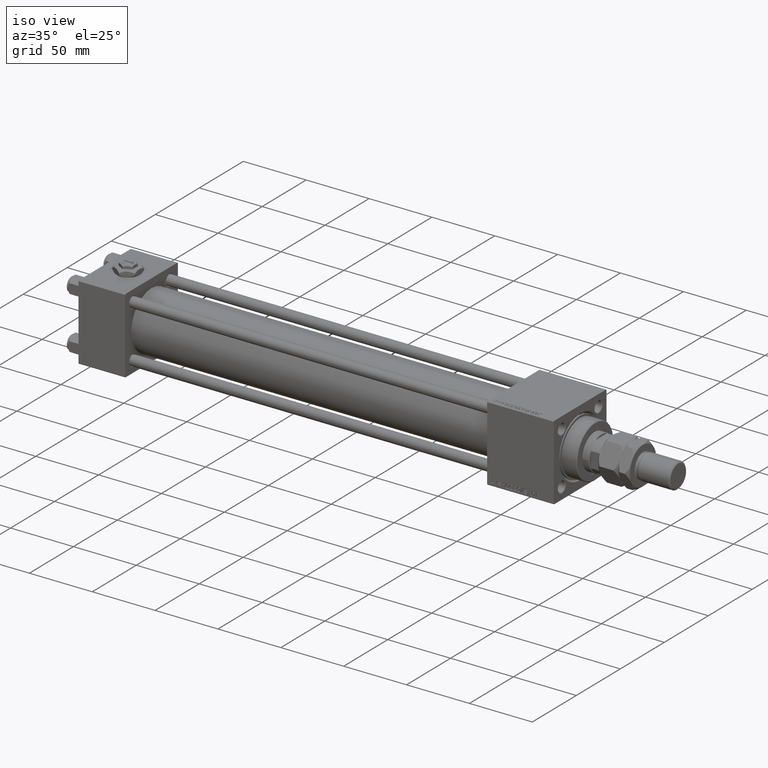
[diagram: clean part render]
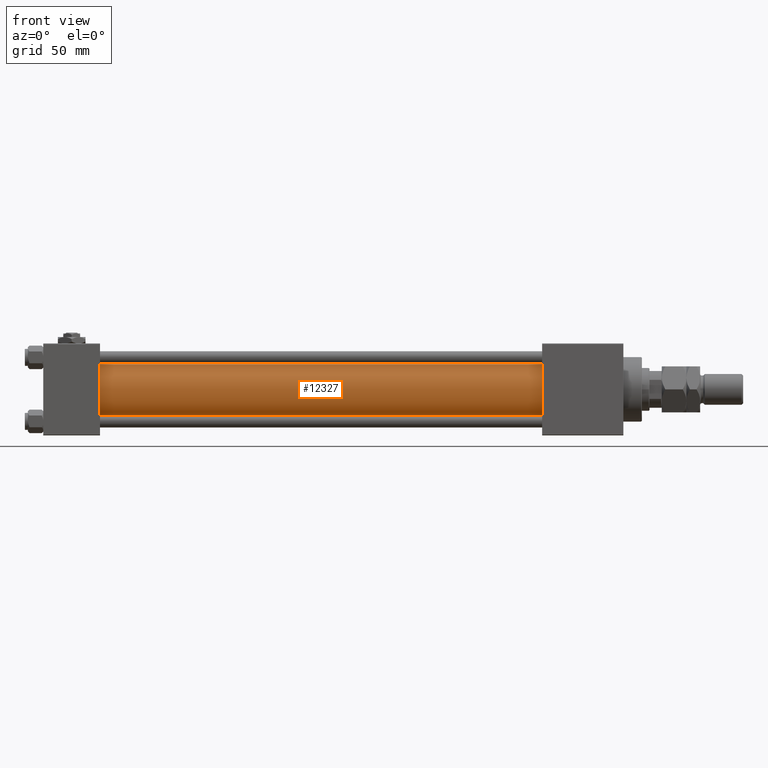
[diagram: tour spotlight — one face highlighted and labeled with its STEP entity id]
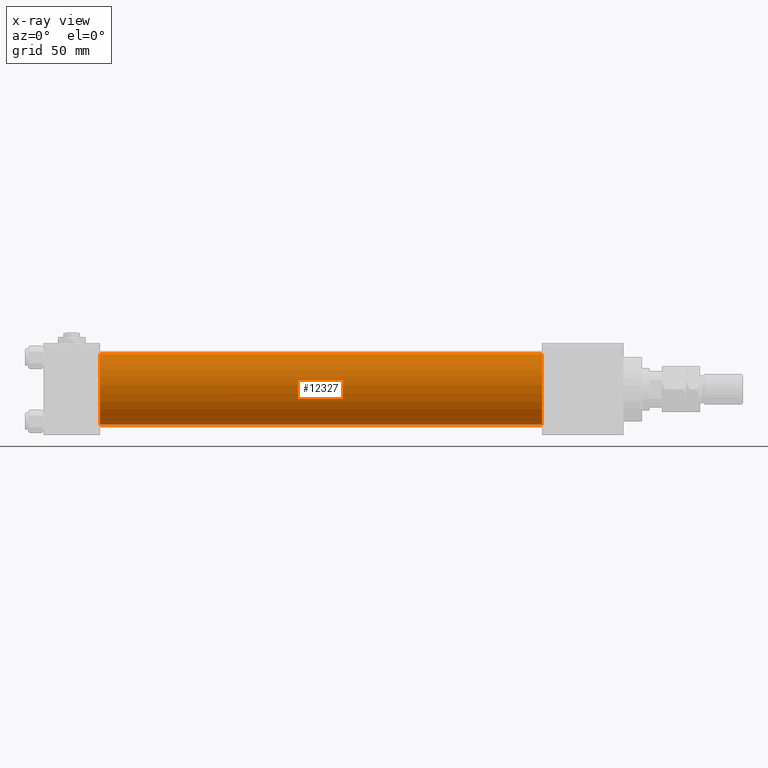
[diagram: x-ray of the same camera — body ghosted, this tour face saturated]
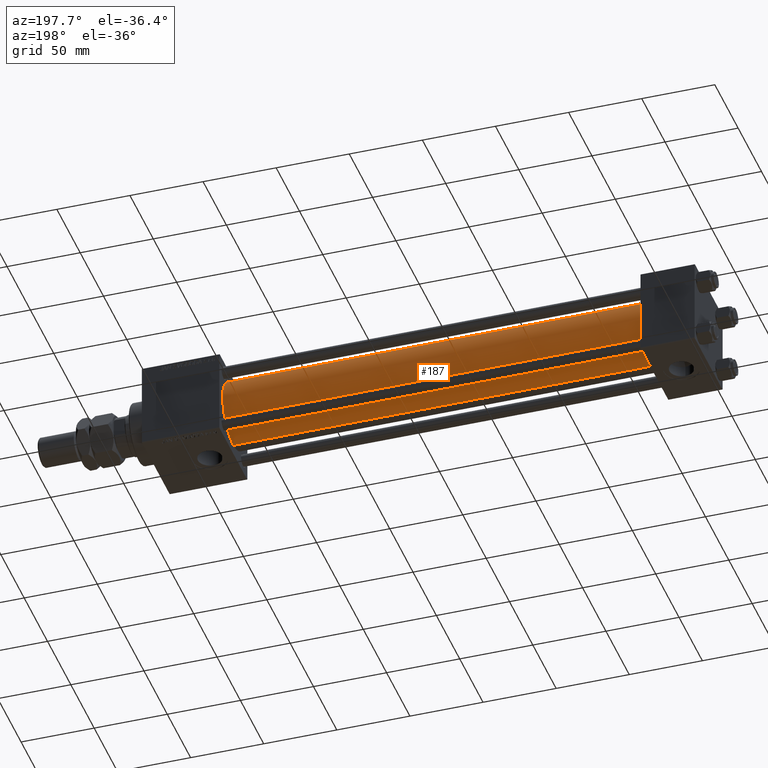
[diagram: tour spotlight — one face highlighted and labeled with its STEP entity id]
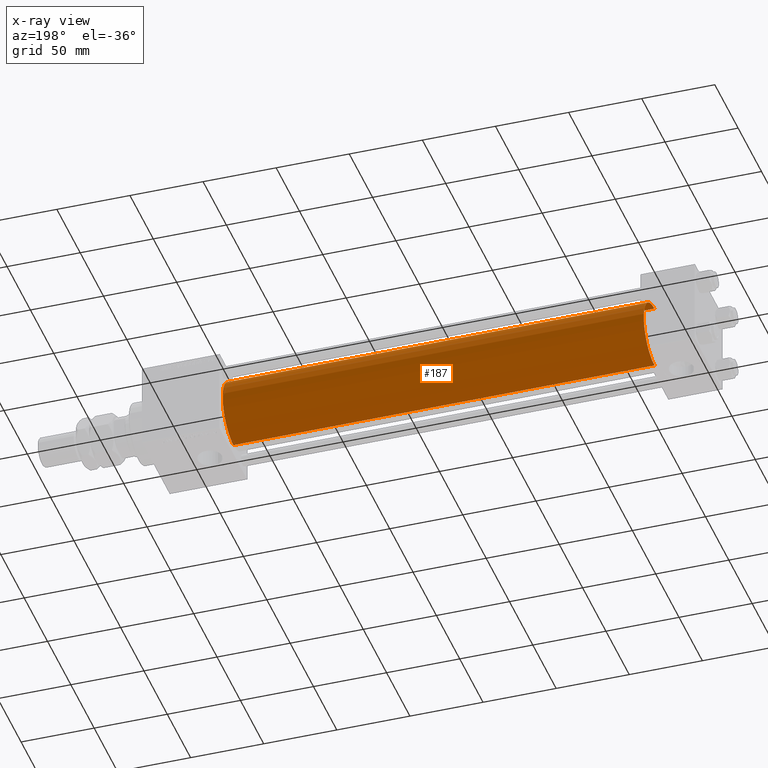
[diagram: x-ray of the same camera — body ghosted, this tour face saturated]
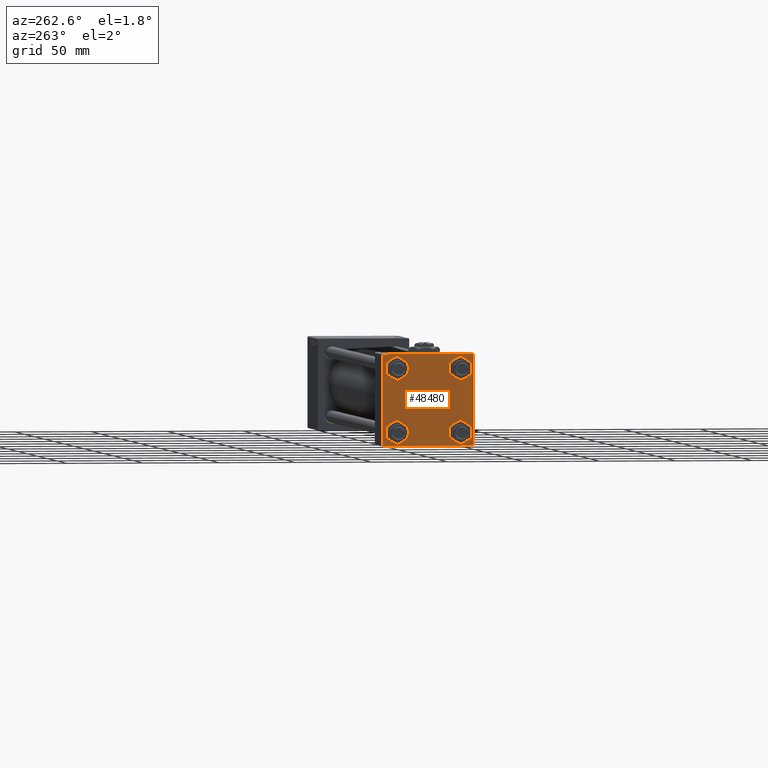
[diagram: tour spotlight — one face highlighted and labeled with its STEP entity id]
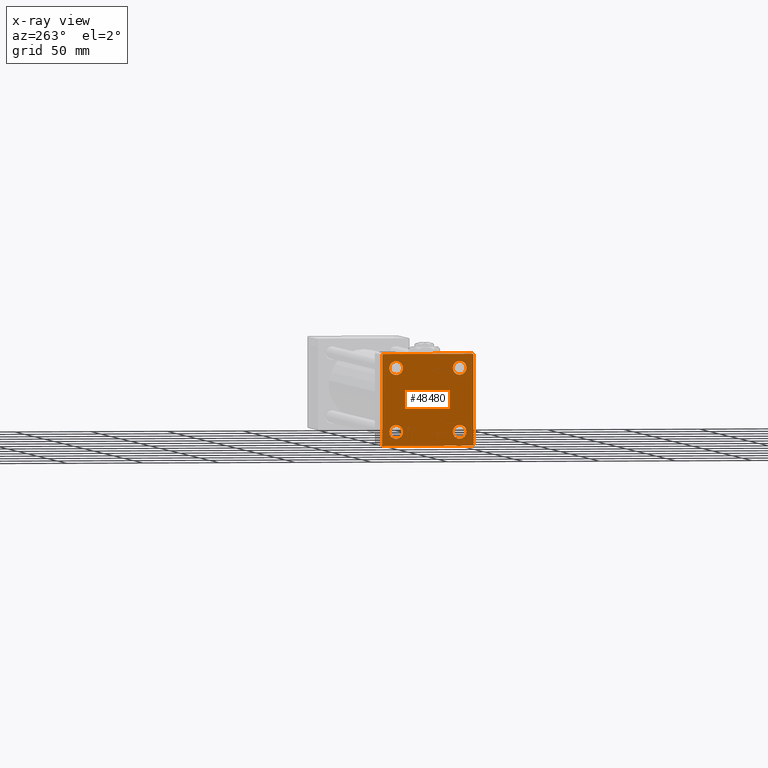
[diagram: x-ray of the same camera — body ghosted, this tour face saturated]
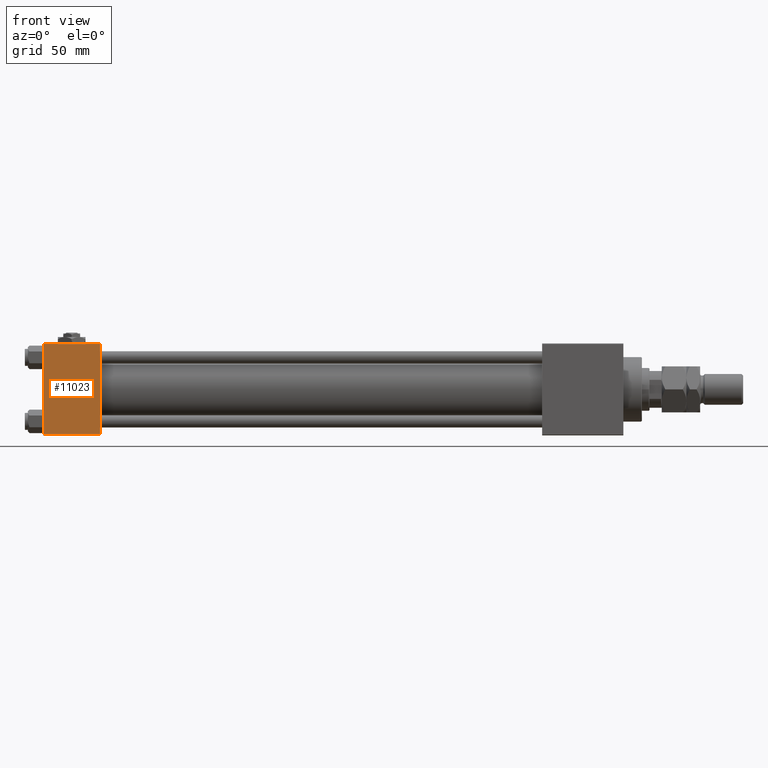
[diagram: tour spotlight — one face highlighted and labeled with its STEP entity id]
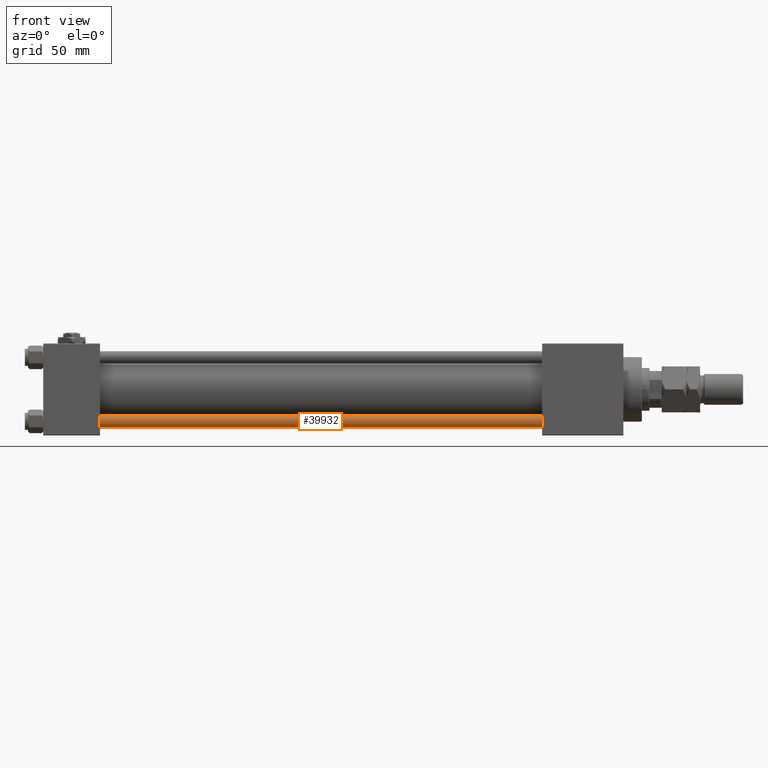
[diagram: tour spotlight — one face highlighted and labeled with its STEP entity id]
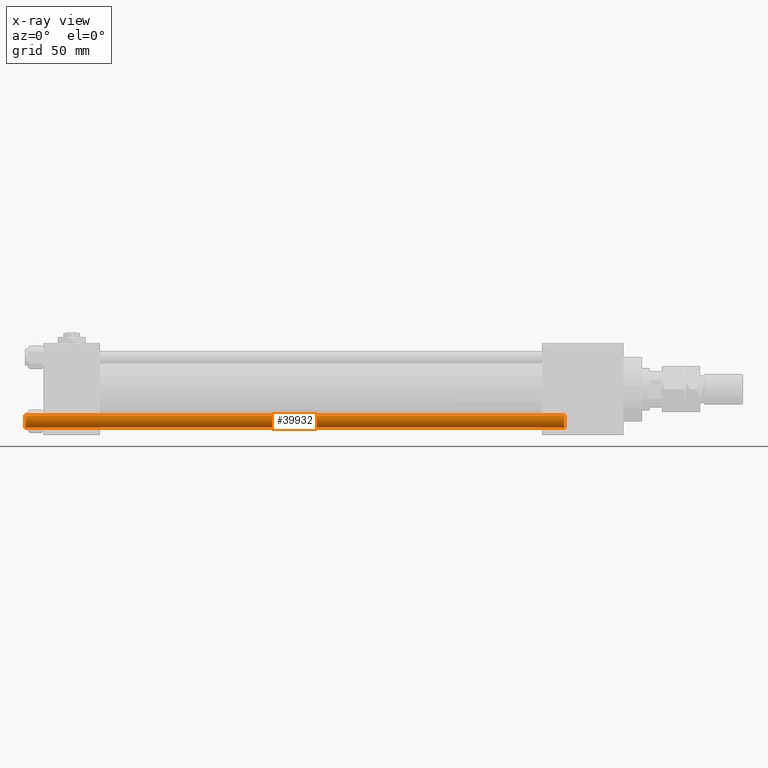
[diagram: x-ray of the same camera — body ghosted, this tour face saturated]
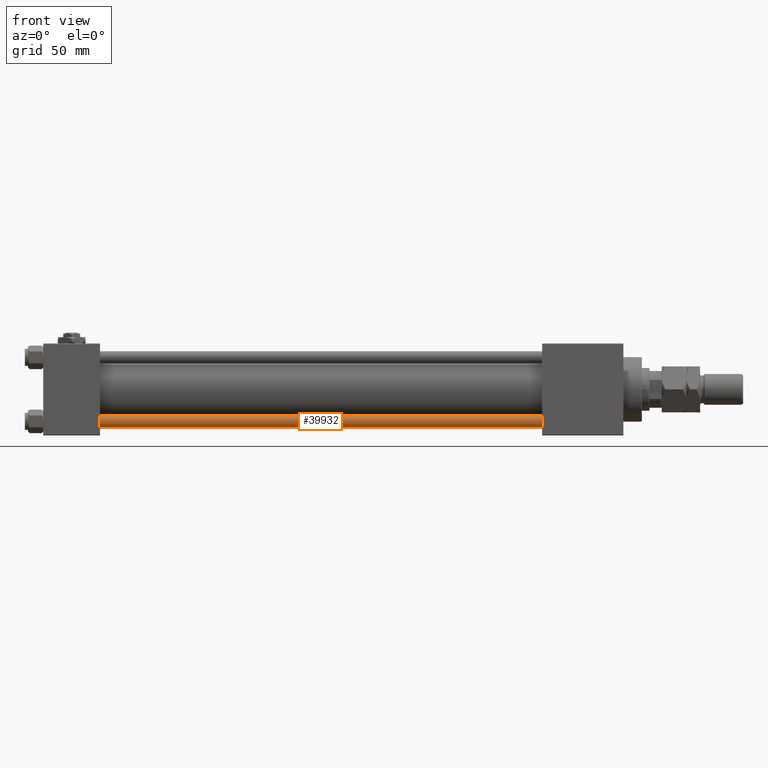
[diagram: tour spotlight — one face highlighted and labeled with its STEP entity id]
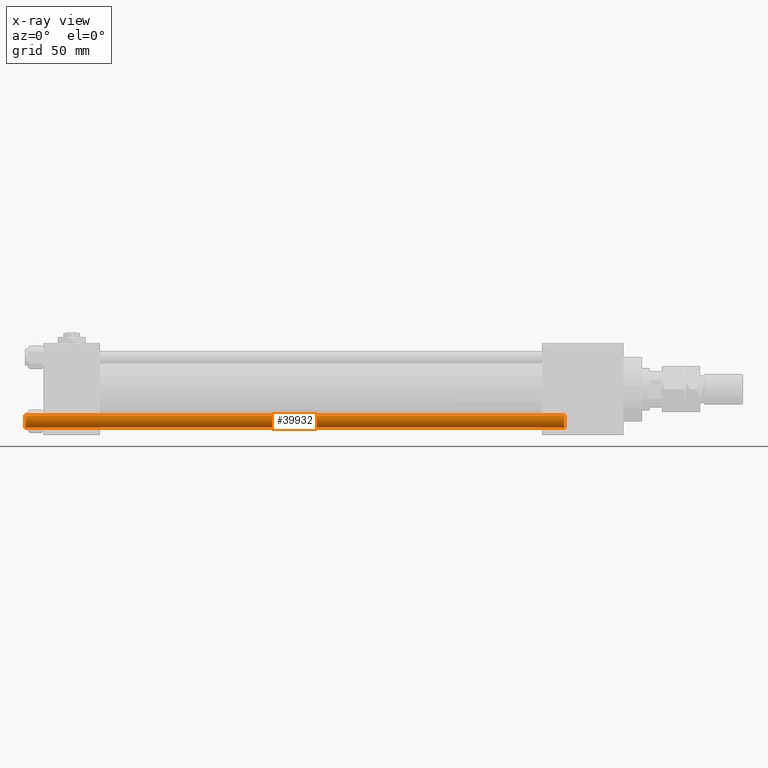
[diagram: x-ray of the same camera — body ghosted, this tour face saturated]
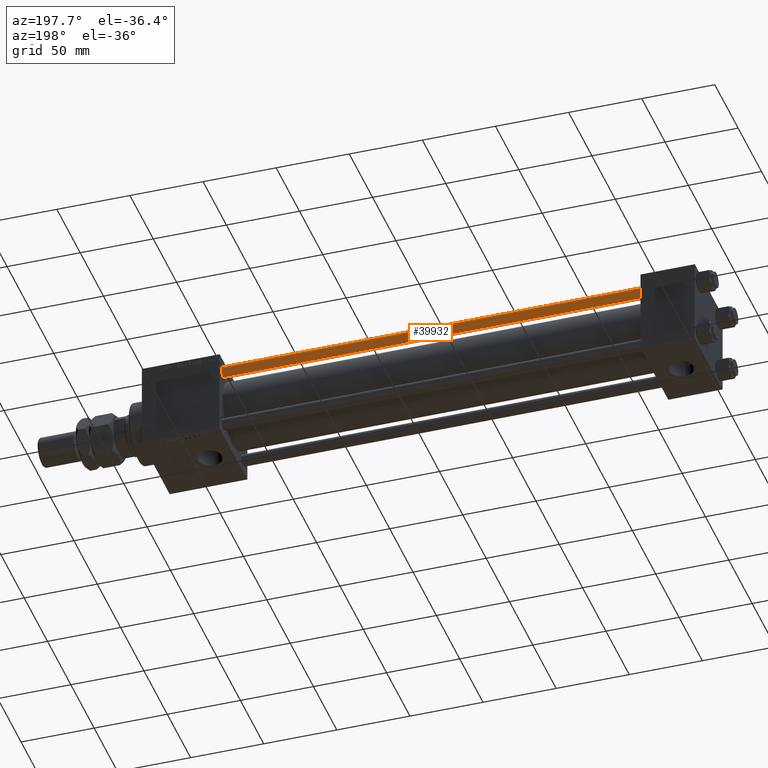
[diagram: tour spotlight — one face highlighted and labeled with its STEP entity id]
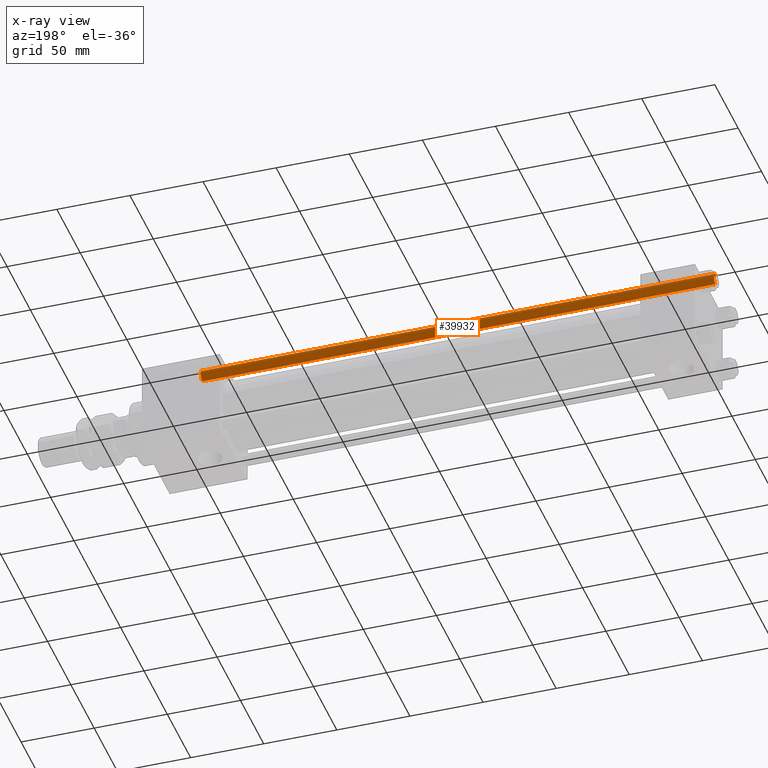
[diagram: x-ray of the same camera — body ghosted, this tour face saturated]
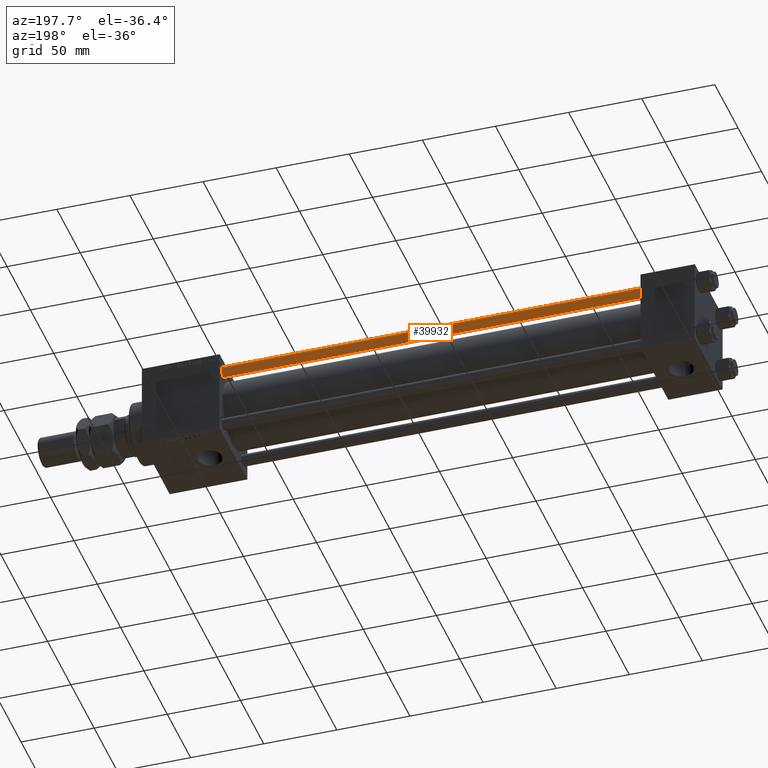
[diagram: tour spotlight — one face highlighted and labeled with its STEP entity id]
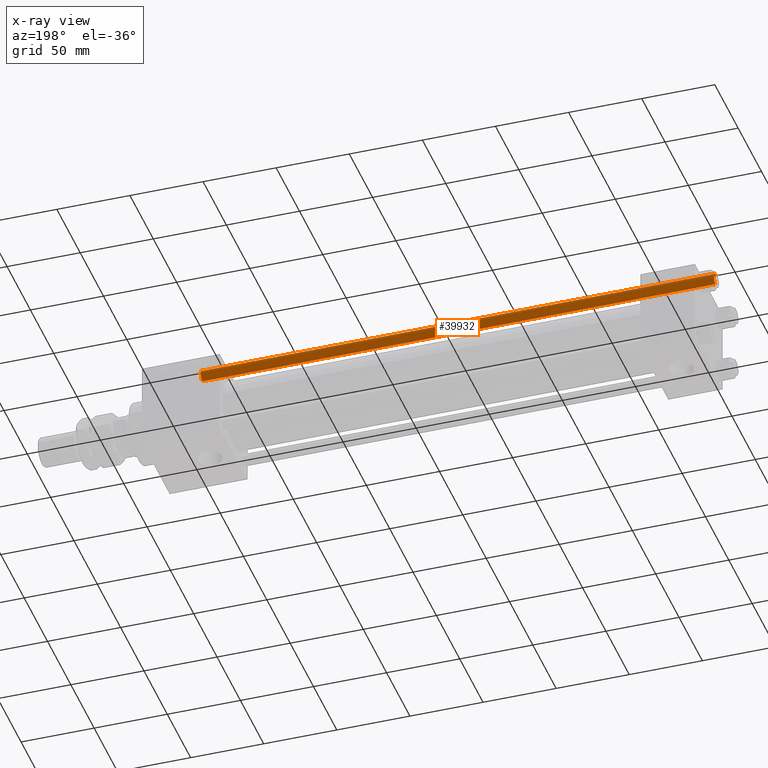
[diagram: x-ray of the same camera — body ghosted, this tour face saturated]
A machine part: a face-by-face anatomy tour. The part has 1251 B-rep faces; the first image is the clean iso view, then the 8 largest visible faces are spotlighted one at a time (largest first), each with its STEP entity span.

Face 1 — front view, entity #12327. An x-ray twin of the same camera follows (body ghosted, this face saturated) — the face is partly hidden behind the body. In plain terms, the highlighted cylindrical surface (edge-blend (fillet) strip) has radius 23 mm, axis along (-1, -0, -0).
Definition (entity closure, byte-faithful):
#2761 = CYLINDRICAL_SURFACE ( 'NONE', #42569, 23.00000000000000000 ) ;
#7839 = CARTESIAN_POINT ( 'NONE',  ( 324.9999999999999432, -2.602085213965210642E-15, 23.00000000000000000 ) ) ;
#7907 = ORIENTED_EDGE ( 'NONE', *, *, #30806, .F. ) ;
#8933 = EDGE_CURVE ( 'NONE', #37255, #41369, #32789, .T. ) ;
#9469 = AXIS2_PLACEMENT_3D ( 'NONE', #46991, #38850, #31000 ) ;
#10084 = ORIENTED_EDGE ( 'NONE', *, *, #19913, .T. ) ;
#11193 = DIRECTION ( 'NONE',  ( 1.000000000000000000, 0.000000000000000000, 0.000000000000000000 ) ) ;
#12068 = DIRECTION ( 'NONE',  ( -1.000000000000000000, -0.000000000000000000, -0.000000000000000000 ) ) ;
#12327 = ADVANCED_FACE ( 'NONE', ( #31465 ), #2761, .T. ) ;
#13672 = CIRCLE ( 'NONE', #24070, 23.00000000000000000 ) ;
#14041 = CARTESIAN_POINT ( 'NONE',  ( 324.9999999999999432, 2.146024240737016609E-16, -23.00000000000000000 ) ) ;
#14940 = DIRECTION ( 'NONE',  ( 0.000000000000000000, 0.000000000000000000, 1.000000000000000000 ) ) ;
#16342 = ORIENTED_EDGE ( 'NONE', *, *, #39855, .F. ) ;
#16907 = CARTESIAN_POINT ( 'NONE',  ( 324.9999999999999432, -2.602085213965210642E-15, 0.000000000000000000 ) ) ;
#19009 = DIRECTION ( 'NONE',  ( -1.000000000000000000, -0.000000000000000000, -0.000000000000000000 ) ) ;
#19913 = EDGE_CURVE ( 'NONE', #29103, #37255, #34590, .T. ) ;
#20766 = ORIENTED_EDGE ( 'NONE', *, *, #8933, .T. ) ;
#20984 = CARTESIAN_POINT ( 'NONE',  ( 324.9999999999999432, 2.146024240737016609E-16, -23.00000000000000000 ) ) ;
#24070 = AXIS2_PLACEMENT_3D ( 'NONE', #16907, #11193, #27451 ) ;
#27451 = DIRECTION ( 'NONE',  ( 0.000000000000000000, 0.000000000000000000, -1.000000000000000000 ) ) ;
#29103 = VERTEX_POINT ( 'NONE', #7839 ) ;
#30806 = EDGE_CURVE ( 'NONE', #29103, #35135, #13672, .T. ) ;
#31000 = DIRECTION ( 'NONE',  ( 0.000000000000000000, 0.000000000000000000, 1.000000000000000000 ) ) ;
#31465 = FACE_OUTER_BOUND ( 'NONE', #50797, .T. ) ;
#32252 = VECTOR ( 'NONE', #12068, 1000.000000000000000 ) ;
#32789 = CIRCLE ( 'NONE', #9469, 23.00000000000000000 ) ;
#34329 = CARTESIAN_POINT ( 'NONE',  ( 324.9999999999999432, -2.602085213965210642E-15, 23.00000000000000000 ) ) ;
#34590 = LINE ( 'NONE', #34329, #39392 ) ;
#35135 = VERTEX_POINT ( 'NONE', #14041 ) ;
#37255 = VERTEX_POINT ( 'NONE', #48968 ) ;
#38377 = DIRECTION ( 'NONE',  ( -1.000000000000000000, -0.000000000000000000, -0.000000000000000000 ) ) ;
#38850 = DIRECTION ( 'NONE',  ( 1.000000000000000000, -0.000000000000000000, 0.000000000000000000 ) ) ;
#39056 = CARTESIAN_POINT ( 'NONE',  ( 324.9999999999999432, -2.602085213965210642E-15, 0.000000000000000000 ) ) ;
#39392 = VECTOR ( 'NONE', #38377, 1000.000000000000000 ) ;
#39855 = EDGE_CURVE ( 'NONE', #35135, #41369, #53506, .T. ) ;
#41369 = VERTEX_POINT ( 'NONE', #44654 ) ;
#42569 = AXIS2_PLACEMENT_3D ( 'NONE', #39056, #19009, #14940 ) ;
#44654 = CARTESIAN_POINT ( 'NONE',  ( 36.99999999999997868, 2.146024240737016609E-16, -23.00000000000000000 ) ) ;
#46991 = CARTESIAN_POINT ( 'NONE',  ( 36.99999999999997868, -2.602085213965210642E-15, 0.000000000000000000 ) ) ;
#48968 = CARTESIAN_POINT ( 'NONE',  ( 36.99999999999997868, -2.602085213965210642E-15, 23.00000000000000000 ) ) ;
#50797 = EDGE_LOOP ( 'NONE', ( #16342, #7907, #10084, #20766 ) ) ;
#53506 = LINE ( 'NONE', #20984, #32252 ) ;

Face 2 — auxiliary view, entity #187. An x-ray twin of the same camera follows (body ghosted, this face saturated) — the face is partly hidden behind the body. In plain terms, the highlighted cylindrical surface (edge-blend (fillet) strip) has radius 23 mm, axis along (-1, -0, -0).
Definition (entity closure, byte-faithful):
#187 = ADVANCED_FACE ( 'NONE', ( #19059 ), #43716, .T. ) ;
#2371 = DIRECTION ( 'NONE',  ( 0.000000000000000000, 0.000000000000000000, -1.000000000000000000 ) ) ;
#3791 = DIRECTION ( 'NONE',  ( 0.000000000000000000, 0.000000000000000000, 1.000000000000000000 ) ) ;
#6091 = EDGE_LOOP ( 'NONE', ( #43416, #14956, #22613, #22994 ) ) ;
#6350 = CARTESIAN_POINT ( 'NONE',  ( 324.9999999999999432, -2.602085213965210642E-15, 0.000000000000000000 ) ) ;
#7839 = CARTESIAN_POINT ( 'NONE',  ( 324.9999999999999432, -2.602085213965210642E-15, 23.00000000000000000 ) ) ;
#12068 = DIRECTION ( 'NONE',  ( -1.000000000000000000, -0.000000000000000000, -0.000000000000000000 ) ) ;
#12181 = DIRECTION ( 'NONE',  ( 1.000000000000000000, -0.000000000000000000, 0.000000000000000000 ) ) ;
#14041 = CARTESIAN_POINT ( 'NONE',  ( 324.9999999999999432, 2.146024240737016609E-16, -23.00000000000000000 ) ) ;
#14956 = ORIENTED_EDGE ( 'NONE', *, *, #39855, .T. ) ;
#18590 = EDGE_CURVE ( 'NONE', #41369, #37255, #49687, .T. ) ;
#19059 = FACE_OUTER_BOUND ( 'NONE', #6091, .T. ) ;
#19913 = EDGE_CURVE ( 'NONE', #29103, #37255, #34590, .T. ) ;
#20984 = CARTESIAN_POINT ( 'NONE',  ( 324.9999999999999432, 2.146024240737016609E-16, -23.00000000000000000 ) ) ;
#21524 = AXIS2_PLACEMENT_3D ( 'NONE', #52209, #22412, #2371 ) ;
#22314 = DIRECTION ( 'NONE',  ( -1.000000000000000000, -0.000000000000000000, -0.000000000000000000 ) ) ;
#22412 = DIRECTION ( 'NONE',  ( 1.000000000000000000, 0.000000000000000000, 0.000000000000000000 ) ) ;
#22613 = ORIENTED_EDGE ( 'NONE', *, *, #18590, .T. ) ;
#22994 = ORIENTED_EDGE ( 'NONE', *, *, #19913, .F. ) ;
#26331 = AXIS2_PLACEMENT_3D ( 'NONE', #28958, #12181, #3791 ) ;
#28958 = CARTESIAN_POINT ( 'NONE',  ( 36.99999999999997868, -2.602085213965210642E-15, 0.000000000000000000 ) ) ;
#29103 = VERTEX_POINT ( 'NONE', #7839 ) ;
#31635 = EDGE_CURVE ( 'NONE', #35135, #29103, #37058, .T. ) ;
#32252 = VECTOR ( 'NONE', #12068, 1000.000000000000000 ) ;
#34329 = CARTESIAN_POINT ( 'NONE',  ( 324.9999999999999432, -2.602085213965210642E-15, 23.00000000000000000 ) ) ;
#34590 = LINE ( 'NONE', #34329, #39392 ) ;
#35135 = VERTEX_POINT ( 'NONE', #14041 ) ;
#35843 = DIRECTION ( 'NONE',  ( 0.000000000000000000, 0.000000000000000000, 1.000000000000000000 ) ) ;
#37058 = CIRCLE ( 'NONE', #21524, 23.00000000000000000 ) ;
#37255 = VERTEX_POINT ( 'NONE', #48968 ) ;
#38377 = DIRECTION ( 'NONE',  ( -1.000000000000000000, -0.000000000000000000, -0.000000000000000000 ) ) ;
#39392 = VECTOR ( 'NONE', #38377, 1000.000000000000000 ) ;
#39855 = EDGE_CURVE ( 'NONE', #35135, #41369, #53506, .T. ) ;
#40491 = AXIS2_PLACEMENT_3D ( 'NONE', #6350, #22314, #35843 ) ;
#41369 = VERTEX_POINT ( 'NONE', #44654 ) ;
#43416 = ORIENTED_EDGE ( 'NONE', *, *, #31635, .F. ) ;
#43716 = CYLINDRICAL_SURFACE ( 'NONE', #40491, 23.00000000000000000 ) ;
#44654 = CARTESIAN_POINT ( 'NONE',  ( 36.99999999999997868, 2.146024240737016609E-16, -23.00000000000000000 ) ) ;
#48968 = CARTESIAN_POINT ( 'NONE',  ( 36.99999999999997868, -2.602085213965210642E-15, 23.00000000000000000 ) ) ;
#49687 = CIRCLE ( 'NONE', #26331, 23.00000000000000000 ) ;
#52209 = CARTESIAN_POINT ( 'NONE',  ( 324.9999999999999432, -2.602085213965210642E-15, 0.000000000000000000 ) ) ;
#53506 = LINE ( 'NONE', #20984, #32252 ) ;

Face 3 — auxiliary view, entity #48480. An x-ray twin of the same camera follows (body ghosted, this face saturated) — the face is partly hidden behind the body. In plain terms, the highlighted planar face has unit normal (-1, 0, 0).
Definition (entity closure, byte-faithful):
#182 = CARTESIAN_POINT ( 'NONE',  ( 0.000000000000000000, 20.84999999999999787, 20.85000000000000142 ) ) ;
#559 = EDGE_CURVE ( 'NONE', #8700, #3542, #6761, .T. ) ;
#989 = CIRCLE ( 'NONE', #29497, 4.500000000000017764 ) ;
#992 = DIRECTION ( 'NONE',  ( 1.000000000000000000, -0.000000000000000000, 0.000000000000000000 ) ) ;
#1590 = ORIENTED_EDGE ( 'NONE', *, *, #18714, .T. ) ;
#2048 = CARTESIAN_POINT ( 'NONE',  ( 0.000000000000000000, 20.84999999999999787, 16.34999999999998366 ) ) ;
#2422 = DIRECTION ( 'NONE',  ( -0.000000000000000000, 0.000000000000000000, 1.000000000000000000 ) ) ;
#2728 = CARTESIAN_POINT ( 'NONE',  ( 0.000000000000000000, 20.84999999999999787, -16.34999999999998366 ) ) ;
#3257 = DIRECTION ( 'NONE',  ( 1.000000000000000000, -0.000000000000000000, 0.000000000000000000 ) ) ;
#3311 = DIRECTION ( 'NONE',  ( 0.000000000000000000, 0.000000000000000000, -1.000000000000000000 ) ) ;
#3400 = VECTOR ( 'NONE', #23100, 1000.000000000000000 ) ;
#3542 = VERTEX_POINT ( 'NONE', #47153 ) ;
#3694 = ORIENTED_EDGE ( 'NONE', *, *, #42987, .T. ) ;
#4223 = ORIENTED_EDGE ( 'NONE', *, *, #33313, .F. ) ;
#4341 = VECTOR ( 'NONE', #19102, 1000.000000000000000 ) ;
#4378 = CARTESIAN_POINT ( 'NONE',  ( 0.000000000000000000, -20.84999999999999076, -20.85000000000000497 ) ) ;
#4699 = DIRECTION ( 'NONE',  ( 1.000000000000000000, -0.000000000000000000, 0.000000000000000000 ) ) ;
#4769 = DIRECTION ( 'NONE',  ( 0.000000000000000000, 0.000000000000000000, 1.000000000000000000 ) ) ;
#4887 = ORIENTED_EDGE ( 'NONE', *, *, #18796, .T. ) ;
#5604 = AXIS2_PLACEMENT_3D ( 'NONE', #29810, #50141, #46343 ) ;
#6121 = CARTESIAN_POINT ( 'NONE',  ( 0.000000000000000000, 29.99999999999999289, -30.00000000000000000 ) ) ;
#6231 = ORIENTED_EDGE ( 'NONE', *, *, #33358, .T. ) ;
#6237 = VECTOR ( 'NONE', #49587, 1000.000000000000000 ) ;
#6296 = EDGE_CURVE ( 'NONE', #35474, #19710, #36155, .T. ) ;
#6537 = DIRECTION ( 'NONE',  ( 0.000000000000000000, 0.7071067811865474617, -0.7071067811865474617 ) ) ;
#6593 = CARTESIAN_POINT ( 'NONE',  ( 0.000000000000000000, -30.00000000000000000, 29.99999999999999289 ) ) ;
#6748 = LINE ( 'NONE', #47370, #51469 ) ;
#6761 = CIRCLE ( 'NONE', #44777, 4.500000000000017764 ) ;
#6763 = CARTESIAN_POINT ( 'NONE',  ( 0.000000000000000000, 0.000000000000000000, 0.000000000000000000 ) ) ;
#7362 = LINE ( 'NONE', #8159, #6237 ) ;
#8159 = CARTESIAN_POINT ( 'NONE',  ( 0.000000000000000000, 29.99999999999999289, 30.00000000000000000 ) ) ;
#8700 = VERTEX_POINT ( 'NONE', #36981 ) ;
#8980 = VERTEX_POINT ( 'NONE', #10167 ) ;
#9406 = DIRECTION ( 'NONE',  ( -0.000000000000000000, 0.7071067811865474617, 0.7071067811865474617 ) ) ;
#9471 = CARTESIAN_POINT ( 'NONE',  ( 0.000000000000000000, 20.84999999999999787, -20.85000000000000142 ) ) ;
#9732 = DIRECTION ( 'NONE',  ( 1.000000000000000000, -0.000000000000000000, 0.000000000000000000 ) ) ;
#10167 = CARTESIAN_POINT ( 'NONE',  ( 0.000000000000000000, 29.99999999999999289, -29.50000000000000000 ) ) ;
#10553 = EDGE_LOOP ( 'NONE', ( #1590, #50904 ) ) ;
#10823 = FACE_BOUND ( 'NONE', #32173, .T. ) ;
#11016 = EDGE_LOOP ( 'NONE', ( #6231, #4887, #43020, #52503, #4223, #28362, #39847, #31067 ) ) ;
#11094 = EDGE_CURVE ( 'NONE', #29499, #11677, #989, .T. ) ;
#11348 = FACE_BOUND ( 'NONE', #10553, .T. ) ;
#11677 = VERTEX_POINT ( 'NONE', #33899 ) ;
#12814 = EDGE_CURVE ( 'NONE', #42581, #45979, #7362, .T. ) ;
#12906 = VECTOR ( 'NONE', #3311, 1000.000000000000000 ) ;
#13618 = VECTOR ( 'NONE', #6537, 1000.000000000000114 ) ;
#13721 = CARTESIAN_POINT ( 'NONE',  ( 0.000000000000000000, 29.49999999999997868, -30.00000000000000000 ) ) ;
#14326 = ORIENTED_EDGE ( 'NONE', *, *, #559, .T. ) ;
#14362 = CARTESIAN_POINT ( 'NONE',  ( 0.000000000000000000, 20.84999999999999787, -20.85000000000000142 ) ) ;
#15706 = EDGE_LOOP ( 'NONE', ( #51726, #3694 ) ) ;
#15923 = DIRECTION ( 'NONE',  ( -1.000000000000000000, 0.000000000000000000, -0.000000000000000000 ) ) ;
#16731 = CARTESIAN_POINT ( 'NONE',  ( 0.000000000000000000, -30.00000000000000000, 29.49999999999999289 ) ) ;
#18142 = EDGE_CURVE ( 'NONE', #48511, #45979, #29162, .T. ) ;
#18714 = EDGE_CURVE ( 'NONE', #11677, #29499, #36711, .T. ) ;
#18796 = EDGE_CURVE ( 'NONE', #8980, #35474, #6748, .T. ) ;
#18865 = ORIENTED_EDGE ( 'NONE', *, *, #34337, .T. ) ;
#19102 = DIRECTION ( 'NONE',  ( 0.000000000000000000, -1.000000000000000000, -1.156482317317871725E-16 ) ) ;
#19285 = CARTESIAN_POINT ( 'NONE',  ( 0.000000000000000000, -30.00000000000000000, -29.50000000000001776 ) ) ;
#19710 = VERTEX_POINT ( 'NONE', #47709 ) ;
#19719 = DIRECTION ( 'NONE',  ( 1.000000000000000000, -0.000000000000000000, 0.000000000000000000 ) ) ;
#20282 = CIRCLE ( 'NONE', #5604, 4.500000000000017764 ) ;
#20874 = VERTEX_POINT ( 'NONE', #40716 ) ;
#21369 = DIRECTION ( 'NONE',  ( 0.000000000000000000, 0.000000000000000000, 1.000000000000000000 ) ) ;
#22159 = EDGE_CURVE ( 'NONE', #3542, #8700, #20282, .T. ) ;
#22217 = CIRCLE ( 'NONE', #46469, 4.500000000000017764 ) ;
#22324 = AXIS2_PLACEMENT_3D ( 'NONE', #4378, #30095, #45545 ) ;
#23100 = DIRECTION ( 'NONE',  ( 0.000000000000000000, 0.000000000000000000, -1.000000000000000000 ) ) ;
#23266 = VERTEX_POINT ( 'NONE', #2728 ) ;
#23366 = LINE ( 'NONE', #52614, #12906 ) ;
#23731 = VECTOR ( 'NONE', #9406, 1000.000000000000114 ) ;
#24013 = CARTESIAN_POINT ( 'NONE',  ( 0.000000000000000000, 29.49999999999999289, 30.00000000000000000 ) ) ;
#24399 = VERTEX_POINT ( 'NONE', #19285 ) ;
#25919 = VERTEX_POINT ( 'NONE', #50026 ) ;
#27342 = FACE_BOUND ( 'NONE', #15706, .T. ) ;
#28362 = ORIENTED_EDGE ( 'NONE', *, *, #18142, .T. ) ;
#28615 = EDGE_CURVE ( 'NONE', #23266, #51601, #22217, .T. ) ;
#29162 = LINE ( 'NONE', #46499, #23731 ) ;
#29497 = AXIS2_PLACEMENT_3D ( 'NONE', #182, #992, #4769 ) ;
#29499 = VERTEX_POINT ( 'NONE', #2048 ) ;
#29810 = CARTESIAN_POINT ( 'NONE',  ( 0.000000000000000000, -20.84999999999999076, 20.85000000000000497 ) ) ;
#30039 = CARTESIAN_POINT ( 'NONE',  ( 0.000000000000000000, 20.84999999999999787, 20.85000000000000142 ) ) ;
#30095 = DIRECTION ( 'NONE',  ( 1.000000000000000000, -0.000000000000000000, 0.000000000000000000 ) ) ;
#30369 = LINE ( 'NONE', #35505, #13618 ) ;
#30408 = LINE ( 'NONE', #46933, #35380 ) ;
#30587 = CARTESIAN_POINT ( 'NONE',  ( 0.000000000000000000, -29.49999999999998579, 29.99999999999999289 ) ) ;
#30638 = AXIS2_PLACEMENT_3D ( 'NONE', #14362, #4699, #34685 ) ;
#31067 = ORIENTED_EDGE ( 'NONE', *, *, #53149, .T. ) ;
#31436 = CARTESIAN_POINT ( 'NONE',  ( 0.000000000000000000, -20.84999999999999076, -20.85000000000000497 ) ) ;
#32173 = EDGE_LOOP ( 'NONE', ( #47259, #18865 ) ) ;
#32404 = EDGE_CURVE ( 'NONE', #19710, #24399, #30408, .T. ) ;
#32442 = CARTESIAN_POINT ( 'NONE',  ( 0.000000000000000000, 29.99999999999999289, 29.50000000000000000 ) ) ;
#33313 = EDGE_CURVE ( 'NONE', #48511, #24399, #51285, .T. ) ;
#33358 = EDGE_CURVE ( 'NONE', #47241, #8980, #23366, .T. ) ;
#33899 = CARTESIAN_POINT ( 'NONE',  ( 0.000000000000000000, 20.84999999999999787, 25.35000000000001918 ) ) ;
#34144 = AXIS2_PLACEMENT_3D ( 'NONE', #30039, #34386, #37903 ) ;
#34319 = AXIS2_PLACEMENT_3D ( 'NONE', #6763, #15923, #2422 ) ;
#34337 = EDGE_CURVE ( 'NONE', #20874, #25919, #43097, .T. ) ;
#34386 = DIRECTION ( 'NONE',  ( 1.000000000000000000, -0.000000000000000000, 0.000000000000000000 ) ) ;
#34449 = EDGE_CURVE ( 'NONE', #25919, #20874, #36174, .T. ) ;
#34685 = DIRECTION ( 'NONE',  ( 0.000000000000000000, 0.000000000000000000, 1.000000000000000000 ) ) ;
#35380 = VECTOR ( 'NONE', #38796, 1000.000000000000114 ) ;
#35474 = VERTEX_POINT ( 'NONE', #13721 ) ;
#35505 = CARTESIAN_POINT ( 'NONE',  ( 0.000000000000000000, 29.74999999999999645, 29.74999999999999645 ) ) ;
#36155 = LINE ( 'NONE', #6121, #4341 ) ;
#36174 = CIRCLE ( 'NONE', #45806, 4.500000000000017764 ) ;
#36711 = CIRCLE ( 'NONE', #34144, 4.500000000000017764 ) ;
#36981 = CARTESIAN_POINT ( 'NONE',  ( 0.000000000000000000, -20.84999999999999076, 25.35000000000002274 ) ) ;
#37903 = DIRECTION ( 'NONE',  ( 0.000000000000000000, 0.000000000000000000, 1.000000000000000000 ) ) ;
#38639 = EDGE_LOOP ( 'NONE', ( #14326, #45651 ) ) ;
#38796 = DIRECTION ( 'NONE',  ( 0.000000000000000000, -0.7071067811865474617, 0.7071067811865474617 ) ) ;
#39511 = CARTESIAN_POINT ( 'NONE',  ( 0.000000000000000000, -20.84999999999999076, 20.85000000000000497 ) ) ;
#39847 = ORIENTED_EDGE ( 'NONE', *, *, #12814, .F. ) ;
#40305 = DIRECTION ( 'NONE',  ( 0.000000000000000000, 0.000000000000000000, 1.000000000000000000 ) ) ;
#40716 = CARTESIAN_POINT ( 'NONE',  ( 0.000000000000000000, -20.84999999999999076, -25.35000000000002274 ) ) ;
#42581 = VERTEX_POINT ( 'NONE', #24013 ) ;
#42743 = CIRCLE ( 'NONE', #30638, 4.500000000000017764 ) ;
#42987 = EDGE_CURVE ( 'NONE', #51601, #23266, #42743, .T. ) ;
#43020 = ORIENTED_EDGE ( 'NONE', *, *, #6296, .T. ) ;
#43097 = CIRCLE ( 'NONE', #22324, 4.500000000000017764 ) ;
#44777 = AXIS2_PLACEMENT_3D ( 'NONE', #39511, #19719, #40305 ) ;
#45545 = DIRECTION ( 'NONE',  ( 0.000000000000000000, 0.000000000000000000, 1.000000000000000000 ) ) ;
#45651 = ORIENTED_EDGE ( 'NONE', *, *, #22159, .T. ) ;
#45806 = AXIS2_PLACEMENT_3D ( 'NONE', #31436, #3257, #48220 ) ;
#45979 = VERTEX_POINT ( 'NONE', #30587 ) ;
#46343 = DIRECTION ( 'NONE',  ( 0.000000000000000000, 0.000000000000000000, 1.000000000000000000 ) ) ;
#46469 = AXIS2_PLACEMENT_3D ( 'NONE', #9471, #9732, #21369 ) ;
#46499 = CARTESIAN_POINT ( 'NONE',  ( -0.000000000000000000, -29.74999999999999645, 29.74999999999999645 ) ) ;
#46933 = CARTESIAN_POINT ( 'NONE',  ( 0.000000000000000000, -29.75000000000001066, -29.75000000000001066 ) ) ;
#47153 = CARTESIAN_POINT ( 'NONE',  ( 0.000000000000000000, -20.84999999999999076, 16.34999999999998721 ) ) ;
#47241 = VERTEX_POINT ( 'NONE', #32442 ) ;
#47259 = ORIENTED_EDGE ( 'NONE', *, *, #34449, .T. ) ;
#47370 = CARTESIAN_POINT ( 'NONE',  ( 0.000000000000000000, 29.74999999999957723, -29.75000000000040501 ) ) ;
#47709 = CARTESIAN_POINT ( 'NONE',  ( 0.000000000000000000, -29.50000000000000000, -30.00000000000000711 ) ) ;
#47909 = PLANE ( 'NONE',  #34319 ) ;
#48160 = DIRECTION ( 'NONE',  ( -0.000000000000000000, -0.7071067811865574537, -0.7071067811865376918 ) ) ;
#48220 = DIRECTION ( 'NONE',  ( 0.000000000000000000, 0.000000000000000000, 1.000000000000000000 ) ) ;
#48480 = ADVANCED_FACE ( 'NONE', ( #53047, #10823, #27342, #11348, #52787 ), #47909, .T. ) ;
#48511 = VERTEX_POINT ( 'NONE', #16731 ) ;
#49587 = DIRECTION ( 'NONE',  ( 0.000000000000000000, -1.000000000000000000, -1.156482317317871725E-16 ) ) ;
#50026 = CARTESIAN_POINT ( 'NONE',  ( 0.000000000000000000, -20.84999999999999076, -16.34999999999998721 ) ) ;
#50141 = DIRECTION ( 'NONE',  ( 1.000000000000000000, -0.000000000000000000, 0.000000000000000000 ) ) ;
#50327 = CARTESIAN_POINT ( 'NONE',  ( 0.000000000000000000, 20.84999999999999787, -25.35000000000001918 ) ) ;
#50904 = ORIENTED_EDGE ( 'NONE', *, *, #11094, .T. ) ;
#51285 = LINE ( 'NONE', #6593, #3400 ) ;
#51469 = VECTOR ( 'NONE', #48160, 999.9999999999998863 ) ;
#51601 = VERTEX_POINT ( 'NONE', #50327 ) ;
#51726 = ORIENTED_EDGE ( 'NONE', *, *, #28615, .T. ) ;
#52503 = ORIENTED_EDGE ( 'NONE', *, *, #32404, .T. ) ;
#52614 = CARTESIAN_POINT ( 'NONE',  ( 0.000000000000000000, 29.99999999999999289, 30.00000000000000000 ) ) ;
#52787 = FACE_OUTER_BOUND ( 'NONE', #11016, .T. ) ;
#53047 = FACE_BOUND ( 'NONE', #38639, .T. ) ;
#53149 = EDGE_CURVE ( 'NONE', #42581, #47241, #30369, .T. ) ;

Face 4 — front view, entity #11023. In plain terms, the highlighted planar face has unit normal (0, 1, 0).
Definition (entity closure, byte-faithful):
#305 = ORIENTED_EDGE ( 'NONE', *, *, #22862, .T. ) ;
#1824 = AXIS2_PLACEMENT_3D ( 'NONE', #24285, #35948, #2915 ) ;
#2915 = DIRECTION ( 'NONE',  ( 0.000000000000000000, -0.000000000000000000, 1.000000000000000000 ) ) ;
#3388 = DIRECTION ( 'NONE',  ( -1.000000000000000000, 0.000000000000000000, 0.000000000000000000 ) ) ;
#3400 = VECTOR ( 'NONE', #23100, 1000.000000000000000 ) ;
#6593 = CARTESIAN_POINT ( 'NONE',  ( 0.000000000000000000, -30.00000000000000000, 29.99999999999999289 ) ) ;
#6992 = CARTESIAN_POINT ( 'NONE',  ( 37.00000000000000000, -30.00000000000000000, -29.50000000000001776 ) ) ;
#7460 = CARTESIAN_POINT ( 'NONE',  ( 37.00000000000000000, -30.00000000000000000, -29.50000000000001776 ) ) ;
#10727 = LINE ( 'NONE', #31562, #34140 ) ;
#11023 = ADVANCED_FACE ( 'NONE', ( #28869 ), #27827, .F. ) ;
#15577 = DIRECTION ( 'NONE',  ( 1.000000000000000000, 0.000000000000000000, 0.000000000000000000 ) ) ;
#16731 = CARTESIAN_POINT ( 'NONE',  ( 0.000000000000000000, -30.00000000000000000, 29.49999999999999289 ) ) ;
#17610 = VECTOR ( 'NONE', #44129, 1000.000000000000000 ) ;
#19285 = CARTESIAN_POINT ( 'NONE',  ( 0.000000000000000000, -30.00000000000000000, -29.50000000000001776 ) ) ;
#20700 = VECTOR ( 'NONE', #15577, 1000.000000000000000 ) ;
#22001 = VERTEX_POINT ( 'NONE', #40395 ) ;
#22672 = VERTEX_POINT ( 'NONE', #6992 ) ;
#22862 = EDGE_CURVE ( 'NONE', #22001, #48511, #10727, .T. ) ;
#23100 = DIRECTION ( 'NONE',  ( 0.000000000000000000, 0.000000000000000000, -1.000000000000000000 ) ) ;
#24285 = CARTESIAN_POINT ( 'NONE',  ( 37.00000000000000000, -30.00000000000000000, 29.99999999999999289 ) ) ;
#24399 = VERTEX_POINT ( 'NONE', #19285 ) ;
#27610 = LINE ( 'NONE', #48184, #17610 ) ;
#27827 = PLANE ( 'NONE',  #1824 ) ;
#28869 = FACE_OUTER_BOUND ( 'NONE', #32600, .T. ) ;
#31562 = CARTESIAN_POINT ( 'NONE',  ( 37.00000000000000000, -30.00000000000000000, 29.49999999999999289 ) ) ;
#32600 = EDGE_LOOP ( 'NONE', ( #43675, #35804, #52509, #305 ) ) ;
#33313 = EDGE_CURVE ( 'NONE', #48511, #24399, #51285, .T. ) ;
#34140 = VECTOR ( 'NONE', #3388, 1000.000000000000000 ) ;
#34635 = EDGE_CURVE ( 'NONE', #24399, #22672, #49146, .T. ) ;
#35804 = ORIENTED_EDGE ( 'NONE', *, *, #34635, .T. ) ;
#35948 = DIRECTION ( 'NONE',  ( -0.000000000000000000, 1.000000000000000000, 0.000000000000000000 ) ) ;
#40395 = CARTESIAN_POINT ( 'NONE',  ( 37.00000000000000000, -30.00000000000000000, 29.49999999999999289 ) ) ;
#41385 = EDGE_CURVE ( 'NONE', #22001, #22672, #27610, .T. ) ;
#43675 = ORIENTED_EDGE ( 'NONE', *, *, #33313, .T. ) ;
#44129 = DIRECTION ( 'NONE',  ( 0.000000000000000000, 0.000000000000000000, -1.000000000000000000 ) ) ;
#48184 = CARTESIAN_POINT ( 'NONE',  ( 37.00000000000000000, -30.00000000000000000, 29.99999999999999289 ) ) ;
#48511 = VERTEX_POINT ( 'NONE', #16731 ) ;
#49146 = LINE ( 'NONE', #7460, #20700 ) ;
#51285 = LINE ( 'NONE', #6593, #3400 ) ;
#52509 = ORIENTED_EDGE ( 'NONE', *, *, #41385, .F. ) ;

Face 5 — front view, entity #39932. An x-ray twin of the same camera follows (body ghosted, this face saturated) — the face is partly hidden behind the body. In plain terms, the highlighted cylindrical surface (edge-blend (fillet) strip) has radius 4 mm, axis along (1, 0, -0).
Definition (entity closure, byte-faithful):
#2239 = LINE ( 'NONE', #46937, #10759 ) ;
#3437 = CARTESIAN_POINT ( 'NONE',  ( -4.000000000000000000, 0.000000000000000000, 352.0000000000000000 ) ) ;
#3613 = ORIENTED_EDGE ( 'NONE', *, *, #10363, .F. ) ;
#4885 = AXIS2_PLACEMENT_3D ( 'NONE', #34459, #50987, #13862 ) ;
#10363 = EDGE_CURVE ( 'NONE', #21443, #21527, #20468, .T. ) ;
#10759 = VECTOR ( 'NONE', #18762, 1000.000000000000000 ) ;
#10837 = CARTESIAN_POINT ( 'NONE',  ( -4.000000000000000000, 0.000000000000000000, 351.5000000000000000 ) ) ;
#11398 = ORIENTED_EDGE ( 'NONE', *, *, #47205, .T. ) ;
#11411 = EDGE_LOOP ( 'NONE', ( #11398, #15802, #23147, #3613 ) ) ;
#11657 = CARTESIAN_POINT ( 'NONE',  ( 0.000000000000000000, 0.000000000000000000, 0.5000000000000004441 ) ) ;
#12597 = CYLINDRICAL_SURFACE ( 'NONE', #23632, 4.000000000000000000 ) ;
#13862 = DIRECTION ( 'NONE',  ( 1.000000000000000000, 0.000000000000000000, 0.000000000000000000 ) ) ;
#15453 = DIRECTION ( 'NONE',  ( 1.000000000000000000, 0.000000000000000000, 0.000000000000000000 ) ) ;
#15802 = ORIENTED_EDGE ( 'NONE', *, *, #21852, .T. ) ;
#17345 = VERTEX_POINT ( 'NONE', #26481 ) ;
#17469 = DIRECTION ( 'NONE',  ( -1.000000000000000000, 0.000000000000000000, 0.000000000000000000 ) ) ;
#18762 = DIRECTION ( 'NONE',  ( -0.000000000000000000, -0.000000000000000000, -1.000000000000000000 ) ) ;
#20468 = LINE ( 'NONE', #3437, #38169 ) ;
#21443 = VERTEX_POINT ( 'NONE', #10837 ) ;
#21527 = VERTEX_POINT ( 'NONE', #41406 ) ;
#21852 = EDGE_CURVE ( 'NONE', #35724, #17345, #2239, .T. ) ;
#23147 = ORIENTED_EDGE ( 'NONE', *, *, #38217, .T. ) ;
#23632 = AXIS2_PLACEMENT_3D ( 'NONE', #50252, #24787, #17469 ) ;
#24787 = DIRECTION ( 'NONE',  ( -0.000000000000000000, -0.000000000000000000, -1.000000000000000000 ) ) ;
#26481 = CARTESIAN_POINT ( 'NONE',  ( 4.000000000000000000, 4.898587196589412829E-16, 0.5000000000000004441 ) ) ;
#28442 = DIRECTION ( 'NONE',  ( -0.000000000000000000, -0.000000000000000000, 1.000000000000000000 ) ) ;
#34459 = CARTESIAN_POINT ( 'NONE',  ( 0.000000000000000000, 0.000000000000000000, 351.5000000000000000 ) ) ;
#34826 = AXIS2_PLACEMENT_3D ( 'NONE', #11657, #28442, #15453 ) ;
#35724 = VERTEX_POINT ( 'NONE', #42375 ) ;
#36501 = CIRCLE ( 'NONE', #34826, 4.000000000000000000 ) ;
#36812 = CIRCLE ( 'NONE', #4885, 4.000000000000000000 ) ;
#38169 = VECTOR ( 'NONE', #44081, 1000.000000000000000 ) ;
#38217 = EDGE_CURVE ( 'NONE', #17345, #21527, #36501, .T. ) ;
#39932 = ADVANCED_FACE ( 'NONE', ( #41312 ), #12597, .T. ) ;
#41312 = FACE_OUTER_BOUND ( 'NONE', #11411, .T. ) ;
#41406 = CARTESIAN_POINT ( 'NONE',  ( -4.000000000000000000, 0.000000000000000000, 0.5000000000000004441 ) ) ;
#42375 = CARTESIAN_POINT ( 'NONE',  ( 4.000000000000000000, 4.898587196589412829E-16, 351.5000000000000000 ) ) ;
#44081 = DIRECTION ( 'NONE',  ( -0.000000000000000000, -0.000000000000000000, -1.000000000000000000 ) ) ;
#46937 = CARTESIAN_POINT ( 'NONE',  ( 4.000000000000000000, 4.898587196589412829E-16, 352.0000000000000000 ) ) ;
#47205 = EDGE_CURVE ( 'NONE', #21443, #35724, #36812, .T. ) ;
#50252 = CARTESIAN_POINT ( 'NONE',  ( 0.000000000000000000, 0.000000000000000000, 352.0000000000000000 ) ) ;
#50987 = DIRECTION ( 'NONE',  ( 0.000000000000000000, 0.000000000000000000, -1.000000000000000000 ) ) ;

Face 6 — front view, entity #39932. An x-ray twin of the same camera follows (body ghosted, this face saturated) — the face is partly hidden behind the body. In plain terms, the highlighted cylindrical surface (edge-blend (fillet) strip) has radius 4 mm, axis along (-1, -0, -0).
Definition (entity closure, byte-faithful):
#2239 = LINE ( 'NONE', #46937, #10759 ) ;
#3437 = CARTESIAN_POINT ( 'NONE',  ( -4.000000000000000000, 0.000000000000000000, 352.0000000000000000 ) ) ;
#3613 = ORIENTED_EDGE ( 'NONE', *, *, #10363, .F. ) ;
#4885 = AXIS2_PLACEMENT_3D ( 'NONE', #34459, #50987, #13862 ) ;
#10363 = EDGE_CURVE ( 'NONE', #21443, #21527, #20468, .T. ) ;
#10759 = VECTOR ( 'NONE', #18762, 1000.000000000000000 ) ;
#10837 = CARTESIAN_POINT ( 'NONE',  ( -4.000000000000000000, 0.000000000000000000, 351.5000000000000000 ) ) ;
#11398 = ORIENTED_EDGE ( 'NONE', *, *, #47205, .T. ) ;
#11411 = EDGE_LOOP ( 'NONE', ( #11398, #15802, #23147, #3613 ) ) ;
#11657 = CARTESIAN_POINT ( 'NONE',  ( 0.000000000000000000, 0.000000000000000000, 0.5000000000000004441 ) ) ;
#12597 = CYLINDRICAL_SURFACE ( 'NONE', #23632, 4.000000000000000000 ) ;
#13862 = DIRECTION ( 'NONE',  ( 1.000000000000000000, 0.000000000000000000, 0.000000000000000000 ) ) ;
#15453 = DIRECTION ( 'NONE',  ( 1.000000000000000000, 0.000000000000000000, 0.000000000000000000 ) ) ;
#15802 = ORIENTED_EDGE ( 'NONE', *, *, #21852, .T. ) ;
#17345 = VERTEX_POINT ( 'NONE', #26481 ) ;
#17469 = DIRECTION ( 'NONE',  ( -1.000000000000000000, 0.000000000000000000, 0.000000000000000000 ) ) ;
#18762 = DIRECTION ( 'NONE',  ( -0.000000000000000000, -0.000000000000000000, -1.000000000000000000 ) ) ;
#20468 = LINE ( 'NONE', #3437, #38169 ) ;
#21443 = VERTEX_POINT ( 'NONE', #10837 ) ;
#21527 = VERTEX_POINT ( 'NONE', #41406 ) ;
#21852 = EDGE_CURVE ( 'NONE', #35724, #17345, #2239, .T. ) ;
#23147 = ORIENTED_EDGE ( 'NONE', *, *, #38217, .T. ) ;
#23632 = AXIS2_PLACEMENT_3D ( 'NONE', #50252, #24787, #17469 ) ;
#24787 = DIRECTION ( 'NONE',  ( -0.000000000000000000, -0.000000000000000000, -1.000000000000000000 ) ) ;
#26481 = CARTESIAN_POINT ( 'NONE',  ( 4.000000000000000000, 4.898587196589412829E-16, 0.5000000000000004441 ) ) ;
#28442 = DIRECTION ( 'NONE',  ( -0.000000000000000000, -0.000000000000000000, 1.000000000000000000 ) ) ;
#34459 = CARTESIAN_POINT ( 'NONE',  ( 0.000000000000000000, 0.000000000000000000, 351.5000000000000000 ) ) ;
#34826 = AXIS2_PLACEMENT_3D ( 'NONE', #11657, #28442, #15453 ) ;
#35724 = VERTEX_POINT ( 'NONE', #42375 ) ;
#36501 = CIRCLE ( 'NONE', #34826, 4.000000000000000000 ) ;
#36812 = CIRCLE ( 'NONE', #4885, 4.000000000000000000 ) ;
#38169 = VECTOR ( 'NONE', #44081, 1000.000000000000000 ) ;
#38217 = EDGE_CURVE ( 'NONE', #17345, #21527, #36501, .T. ) ;
#39932 = ADVANCED_FACE ( 'NONE', ( #41312 ), #12597, .T. ) ;
#41312 = FACE_OUTER_BOUND ( 'NONE', #11411, .T. ) ;
#41406 = CARTESIAN_POINT ( 'NONE',  ( -4.000000000000000000, 0.000000000000000000, 0.5000000000000004441 ) ) ;
#42375 = CARTESIAN_POINT ( 'NONE',  ( 4.000000000000000000, 4.898587196589412829E-16, 351.5000000000000000 ) ) ;
#44081 = DIRECTION ( 'NONE',  ( -0.000000000000000000, -0.000000000000000000, -1.000000000000000000 ) ) ;
#46937 = CARTESIAN_POINT ( 'NONE',  ( 4.000000000000000000, 4.898587196589412829E-16, 352.0000000000000000 ) ) ;
#47205 = EDGE_CURVE ( 'NONE', #21443, #35724, #36812, .T. ) ;
#50252 = CARTESIAN_POINT ( 'NONE',  ( 0.000000000000000000, 0.000000000000000000, 352.0000000000000000 ) ) ;
#50987 = DIRECTION ( 'NONE',  ( 0.000000000000000000, 0.000000000000000000, -1.000000000000000000 ) ) ;

Face 7 — auxiliary view, entity #39932. An x-ray twin of the same camera follows (body ghosted, this face saturated) — the face is partly hidden behind the body. In plain terms, the highlighted cylindrical surface (edge-blend (fillet) strip) has radius 4 mm, axis along (1, -0, 0).
Definition (entity closure, byte-faithful):
#2239 = LINE ( 'NONE', #46937, #10759 ) ;
#3437 = CARTESIAN_POINT ( 'NONE',  ( -4.000000000000000000, 0.000000000000000000, 352.0000000000000000 ) ) ;
#3613 = ORIENTED_EDGE ( 'NONE', *, *, #10363, .F. ) ;
#4885 = AXIS2_PLACEMENT_3D ( 'NONE', #34459, #50987, #13862 ) ;
#10363 = EDGE_CURVE ( 'NONE', #21443, #21527, #20468, .T. ) ;
#10759 = VECTOR ( 'NONE', #18762, 1000.000000000000000 ) ;
#10837 = CARTESIAN_POINT ( 'NONE',  ( -4.000000000000000000, 0.000000000000000000, 351.5000000000000000 ) ) ;
#11398 = ORIENTED_EDGE ( 'NONE', *, *, #47205, .T. ) ;
#11411 = EDGE_LOOP ( 'NONE', ( #11398, #15802, #23147, #3613 ) ) ;
#11657 = CARTESIAN_POINT ( 'NONE',  ( 0.000000000000000000, 0.000000000000000000, 0.5000000000000004441 ) ) ;
#12597 = CYLINDRICAL_SURFACE ( 'NONE', #23632, 4.000000000000000000 ) ;
#13862 = DIRECTION ( 'NONE',  ( 1.000000000000000000, 0.000000000000000000, 0.000000000000000000 ) ) ;
#15453 = DIRECTION ( 'NONE',  ( 1.000000000000000000, 0.000000000000000000, 0.000000000000000000 ) ) ;
#15802 = ORIENTED_EDGE ( 'NONE', *, *, #21852, .T. ) ;
#17345 = VERTEX_POINT ( 'NONE', #26481 ) ;
#17469 = DIRECTION ( 'NONE',  ( -1.000000000000000000, 0.000000000000000000, 0.000000000000000000 ) ) ;
#18762 = DIRECTION ( 'NONE',  ( -0.000000000000000000, -0.000000000000000000, -1.000000000000000000 ) ) ;
#20468 = LINE ( 'NONE', #3437, #38169 ) ;
#21443 = VERTEX_POINT ( 'NONE', #10837 ) ;
#21527 = VERTEX_POINT ( 'NONE', #41406 ) ;
#21852 = EDGE_CURVE ( 'NONE', #35724, #17345, #2239, .T. ) ;
#23147 = ORIENTED_EDGE ( 'NONE', *, *, #38217, .T. ) ;
#23632 = AXIS2_PLACEMENT_3D ( 'NONE', #50252, #24787, #17469 ) ;
#24787 = DIRECTION ( 'NONE',  ( -0.000000000000000000, -0.000000000000000000, -1.000000000000000000 ) ) ;
#26481 = CARTESIAN_POINT ( 'NONE',  ( 4.000000000000000000, 4.898587196589412829E-16, 0.5000000000000004441 ) ) ;
#28442 = DIRECTION ( 'NONE',  ( -0.000000000000000000, -0.000000000000000000, 1.000000000000000000 ) ) ;
#34459 = CARTESIAN_POINT ( 'NONE',  ( 0.000000000000000000, 0.000000000000000000, 351.5000000000000000 ) ) ;
#34826 = AXIS2_PLACEMENT_3D ( 'NONE', #11657, #28442, #15453 ) ;
#35724 = VERTEX_POINT ( 'NONE', #42375 ) ;
#36501 = CIRCLE ( 'NONE', #34826, 4.000000000000000000 ) ;
#36812 = CIRCLE ( 'NONE', #4885, 4.000000000000000000 ) ;
#38169 = VECTOR ( 'NONE', #44081, 1000.000000000000000 ) ;
#38217 = EDGE_CURVE ( 'NONE', #17345, #21527, #36501, .T. ) ;
#39932 = ADVANCED_FACE ( 'NONE', ( #41312 ), #12597, .T. ) ;
#41312 = FACE_OUTER_BOUND ( 'NONE', #11411, .T. ) ;
#41406 = CARTESIAN_POINT ( 'NONE',  ( -4.000000000000000000, 0.000000000000000000, 0.5000000000000004441 ) ) ;
#42375 = CARTESIAN_POINT ( 'NONE',  ( 4.000000000000000000, 4.898587196589412829E-16, 351.5000000000000000 ) ) ;
#44081 = DIRECTION ( 'NONE',  ( -0.000000000000000000, -0.000000000000000000, -1.000000000000000000 ) ) ;
#46937 = CARTESIAN_POINT ( 'NONE',  ( 4.000000000000000000, 4.898587196589412829E-16, 352.0000000000000000 ) ) ;
#47205 = EDGE_CURVE ( 'NONE', #21443, #35724, #36812, .T. ) ;
#50252 = CARTESIAN_POINT ( 'NONE',  ( 0.000000000000000000, 0.000000000000000000, 352.0000000000000000 ) ) ;
#50987 = DIRECTION ( 'NONE',  ( 0.000000000000000000, 0.000000000000000000, -1.000000000000000000 ) ) ;

Face 8 — auxiliary view, entity #39932. An x-ray twin of the same camera follows (body ghosted, this face saturated) — the face is partly hidden behind the body. In plain terms, the highlighted cylindrical surface (edge-blend (fillet) strip) has radius 4 mm, axis along (-1, 0, 0).
Definition (entity closure, byte-faithful):
#2239 = LINE ( 'NONE', #46937, #10759 ) ;
#3437 = CARTESIAN_POINT ( 'NONE',  ( -4.000000000000000000, 0.000000000000000000, 352.0000000000000000 ) ) ;
#3613 = ORIENTED_EDGE ( 'NONE', *, *, #10363, .F. ) ;
#4885 = AXIS2_PLACEMENT_3D ( 'NONE', #34459, #50987, #13862 ) ;
#10363 = EDGE_CURVE ( 'NONE', #21443, #21527, #20468, .T. ) ;
#10759 = VECTOR ( 'NONE', #18762, 1000.000000000000000 ) ;
#10837 = CARTESIAN_POINT ( 'NONE',  ( -4.000000000000000000, 0.000000000000000000, 351.5000000000000000 ) ) ;
#11398 = ORIENTED_EDGE ( 'NONE', *, *, #47205, .T. ) ;
#11411 = EDGE_LOOP ( 'NONE', ( #11398, #15802, #23147, #3613 ) ) ;
#11657 = CARTESIAN_POINT ( 'NONE',  ( 0.000000000000000000, 0.000000000000000000, 0.5000000000000004441 ) ) ;
#12597 = CYLINDRICAL_SURFACE ( 'NONE', #23632, 4.000000000000000000 ) ;
#13862 = DIRECTION ( 'NONE',  ( 1.000000000000000000, 0.000000000000000000, 0.000000000000000000 ) ) ;
#15453 = DIRECTION ( 'NONE',  ( 1.000000000000000000, 0.000000000000000000, 0.000000000000000000 ) ) ;
#15802 = ORIENTED_EDGE ( 'NONE', *, *, #21852, .T. ) ;
#17345 = VERTEX_POINT ( 'NONE', #26481 ) ;
#17469 = DIRECTION ( 'NONE',  ( -1.000000000000000000, 0.000000000000000000, 0.000000000000000000 ) ) ;
#18762 = DIRECTION ( 'NONE',  ( -0.000000000000000000, -0.000000000000000000, -1.000000000000000000 ) ) ;
#20468 = LINE ( 'NONE', #3437, #38169 ) ;
#21443 = VERTEX_POINT ( 'NONE', #10837 ) ;
#21527 = VERTEX_POINT ( 'NONE', #41406 ) ;
#21852 = EDGE_CURVE ( 'NONE', #35724, #17345, #2239, .T. ) ;
#23147 = ORIENTED_EDGE ( 'NONE', *, *, #38217, .T. ) ;
#23632 = AXIS2_PLACEMENT_3D ( 'NONE', #50252, #24787, #17469 ) ;
#24787 = DIRECTION ( 'NONE',  ( -0.000000000000000000, -0.000000000000000000, -1.000000000000000000 ) ) ;
#26481 = CARTESIAN_POINT ( 'NONE',  ( 4.000000000000000000, 4.898587196589412829E-16, 0.5000000000000004441 ) ) ;
#28442 = DIRECTION ( 'NONE',  ( -0.000000000000000000, -0.000000000000000000, 1.000000000000000000 ) ) ;
#34459 = CARTESIAN_POINT ( 'NONE',  ( 0.000000000000000000, 0.000000000000000000, 351.5000000000000000 ) ) ;
#34826 = AXIS2_PLACEMENT_3D ( 'NONE', #11657, #28442, #15453 ) ;
#35724 = VERTEX_POINT ( 'NONE', #42375 ) ;
#36501 = CIRCLE ( 'NONE', #34826, 4.000000000000000000 ) ;
#36812 = CIRCLE ( 'NONE', #4885, 4.000000000000000000 ) ;
#38169 = VECTOR ( 'NONE', #44081, 1000.000000000000000 ) ;
#38217 = EDGE_CURVE ( 'NONE', #17345, #21527, #36501, .T. ) ;
#39932 = ADVANCED_FACE ( 'NONE', ( #41312 ), #12597, .T. ) ;
#41312 = FACE_OUTER_BOUND ( 'NONE', #11411, .T. ) ;
#41406 = CARTESIAN_POINT ( 'NONE',  ( -4.000000000000000000, 0.000000000000000000, 0.5000000000000004441 ) ) ;
#42375 = CARTESIAN_POINT ( 'NONE',  ( 4.000000000000000000, 4.898587196589412829E-16, 351.5000000000000000 ) ) ;
#44081 = DIRECTION ( 'NONE',  ( -0.000000000000000000, -0.000000000000000000, -1.000000000000000000 ) ) ;
#46937 = CARTESIAN_POINT ( 'NONE',  ( 4.000000000000000000, 4.898587196589412829E-16, 352.0000000000000000 ) ) ;
#47205 = EDGE_CURVE ( 'NONE', #21443, #35724, #36812, .T. ) ;
#50252 = CARTESIAN_POINT ( 'NONE',  ( 0.000000000000000000, 0.000000000000000000, 352.0000000000000000 ) ) ;
#50987 = DIRECTION ( 'NONE',  ( 0.000000000000000000, 0.000000000000000000, -1.000000000000000000 ) ) ;